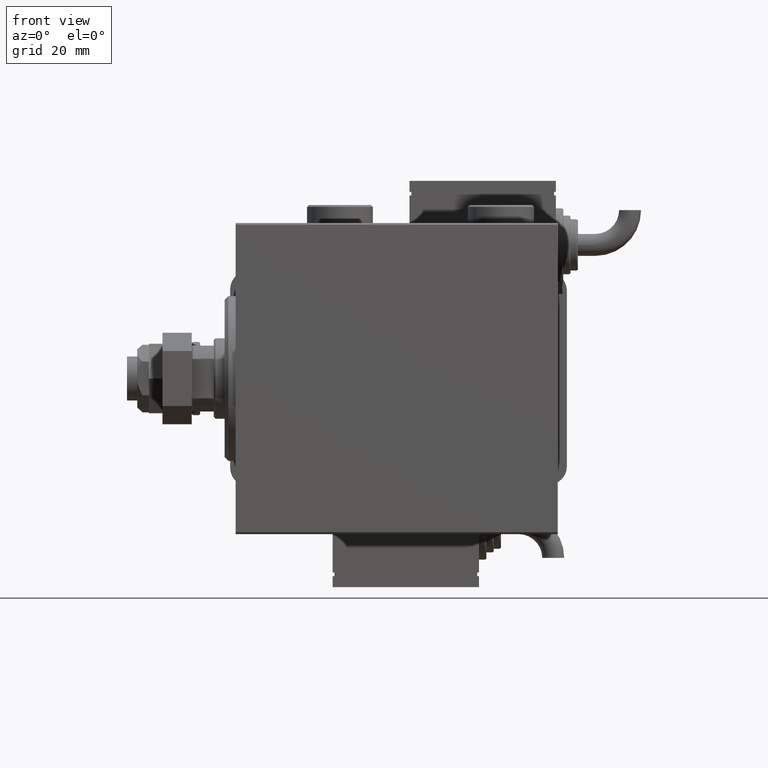
[diagram: clean part render]
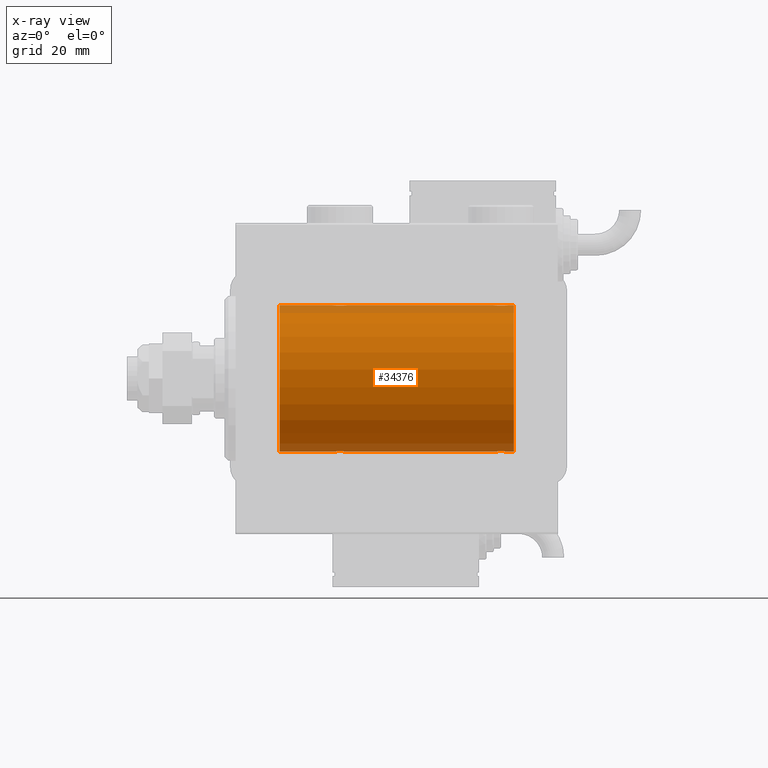
[diagram: x-ray — body ghosted, one internal face saturated and labeled with its STEP entity id]
A machine part, front view, then the same camera in x-ray: the body is ghosted and one INTERNAL B-rep face — a face not visible from any outside direction — is saturated and labeled: STEP entity #34376.
In plain terms, the highlighted cylindrical surface (partial cylindrical patch) has radius 20 mm, axis along (-1, -0, -0).
Its self-contained STEP definition (entity closure, byte-faithful):
#779 = CARTESIAN_POINT ( 'NONE',  ( 27.98351467081095123, -1.936551476643005198, -19.90603968831098314 ) ) ;
#826 = CARTESIAN_POINT ( 'NONE',  ( 26.50000000000000711, -0.2610801504281929919, 20.00000000000000000 ) ) ;
#2074 = CARTESIAN_POINT ( 'NONE',  ( 70.75313023696928383, -1.008108445278686816, -19.97602680192586178 ) ) ;
#2391 = CARTESIAN_POINT ( 'NONE',  ( 71.98351467081099031, -1.936551476643008529, -19.90603968831099024 ) ) ;
#2506 = CARTESIAN_POINT ( 'NONE',  ( 11.99999999999999645, 0.000000000000000000, 0.000000000000000000 ) ) ;
#2880 = EDGE_CURVE ( 'NONE', #22528, #5384, #12019, .T. ) ;
#2999 = CARTESIAN_POINT ( 'NONE',  ( 72.23922743968432769, -1.987205673487811630, -19.90104673894211018 ) ) ;
#3312 = CARTESIAN_POINT ( 'NONE',  ( 72.76358144091415170, -1.986835489085815309, -19.90108393514801577 ) ) ;
#3634 = ORIENTED_EDGE ( 'NONE', *, *, #17148, .F. ) ;
#4553 = CARTESIAN_POINT ( 'NONE',  ( 26.50000000000000355, -3.809869420541414000E-15, -20.00000000000000000 ) ) ;
#4819 = CARTESIAN_POINT ( 'NONE',  ( 71.49693443660397918, -1.735203193119890352, 19.92471783160910803 ) ) ;
#5081 = CIRCLE ( 'NONE', #58569, 20.00000000000000000 ) ;
#5148 = CARTESIAN_POINT ( 'NONE',  ( 29.38829437207091999, -1.796691196322316664, -19.91919800395357143 ) ) ;
#5384 = VERTEX_POINT ( 'NONE', #9202 ) ;
#5442 = CARTESIAN_POINT ( 'NONE',  ( 28.63365196142448355, -1.999898234284062992, -19.89975896996866211 ) ) ;
#5488 = CARTESIAN_POINT ( 'NONE',  ( 28.76077256031567586, -1.987205673487810298, 19.90104673894210663 ) ) ;
#5784 = CARTESIAN_POINT ( 'NONE',  ( 29.71805419472152110, -1.591668229360196252, 19.93669678979812332 ) ) ;
#5971 = VECTOR ( 'NONE', #55344, 1000.000000000000000 ) ;
#6914 = ORIENTED_EDGE ( 'NONE', *, *, #58748, .T. ) ;
#7346 = CARTESIAN_POINT ( 'NONE',  ( 73.50306556339603503, -1.735203193119893461, -19.92471783160911514 ) ) ;
#7553 = LINE ( 'NONE', #59669, #44777 ) ;
#7952 = CARTESIAN_POINT ( 'NONE',  ( 74.50000000000002842, -0.2610801504281906049, -19.99999999999999645 ) ) ;
#8406 = CARTESIAN_POINT ( 'NONE',  ( 76.00000000000000000, 0.000000000000000000, 0.000000000000000000 ) ) ;
#9017 = DIRECTION ( 'NONE',  ( -1.000000000000000000, -0.000000000000000000, -0.000000000000000000 ) ) ;
#9164 = CARTESIAN_POINT ( 'NONE',  ( 70.75174086539982454, -1.005710574260841872, 19.97614991974274190 ) ) ;
#9202 = CARTESIAN_POINT ( 'NONE',  ( 74.50000000000001421, 9.984436361108698300E-16, 20.00000000000000000 ) ) ;
#9468 = CARTESIAN_POINT ( 'NONE',  ( 74.24686976303074459, -1.008108445278681931, 19.97602680192586178 ) ) ;
#9788 = EDGE_CURVE ( 'NONE', #16527, #57274, #61198, .T. ) ;
#9793 = CARTESIAN_POINT ( 'NONE',  ( 26.50000000000001066, -0.2644051013331030209, -20.00000000000000355 ) ) ;
#9832 = CARTESIAN_POINT ( 'NONE',  ( 30.50000000000000000, -4.014971335008767791E-15, 20.00000000000000000 ) ) ;
#10057 = CARTESIAN_POINT ( 'NONE',  ( 70.50000000000000000, -1.553188236289650144E-23, 20.00000000000000000 ) ) ;
#10435 = CARTESIAN_POINT ( 'NONE',  ( 29.50067219139244656, -1.736582545981375292, 19.92459705242981371 ) ) ;
#10549 = LINE ( 'NONE', #58943, #14796 ) ;
#10951 = VECTOR ( 'NONE', #60974, 1000.000000000000000 ) ;
#12019 = B_SPLINE_CURVE_WITH_KNOTS ( 'NONE', 3,
 ( #10057, #42345, #28984, #9164, #38291, #60988, #32731, #4819, #61285, #33040, #23134, #57227, #18468, #37989, #19072, #51650, #37680, #18772, #56626, #14099, #51960, #14707, #9468, #28388, #23741, #42647 ),
 .UNSPECIFIED., .F., .F.,
 ( 4, 2, 2, 2, 2, 2, 2, 2, 2, 2, 2, 2, 4 ),
 ( 0.006256819553329836213, 0.007038738568778784600, 0.007820657584227733855, 0.008211617091952222794, 0.008602576599676711733, 0.008993536107401198937, 0.009384495615125687876, 0.009775455122850176815, 0.01016641463057466402, 0.01055737413829915296, 0.01094833364602364190, 0.01173025266147261630, 0.01251217167692159418 ),
 .UNSPECIFIED. ) ;
#12603 = VERTEX_POINT ( 'NONE', #23732 ) ;
#13657 = CYLINDRICAL_SURFACE ( 'NONE', #53588, 20.00000000000000000 ) ;
#13830 = CARTESIAN_POINT ( 'NONE',  ( 27.49932780860757475, -1.736582545981376180, -19.92459705242981371 ) ) ;
#14099 = CARTESIAN_POINT ( 'NONE',  ( 73.71805419472154597, -1.591668229360190034, 19.93669678979813042 ) ) ;
#14345 = ORIENTED_EDGE ( 'NONE', *, *, #53628, .T. ) ;
#14444 = CARTESIAN_POINT ( 'NONE',  ( 30.44755062882508412, -0.5243189001514996228, -19.99457699142849876 ) ) ;
#14707 = CARTESIAN_POINT ( 'NONE',  ( 74.09774691554730452, -1.230936344679272043, 19.96293863536309487 ) ) ;
#14738 = CARTESIAN_POINT ( 'NONE',  ( 26.55320515808203297, -0.5270924491156698810, -19.99450181871976184 ) ) ;
#14796 = VECTOR ( 'NONE', #54278, 1000.000000000000000 ) ;
#15078 = CARTESIAN_POINT ( 'NONE',  ( 30.09774691554730097, -1.230936344679278482, 19.96293863536309132 ) ) ;
#15685 = CARTESIAN_POINT ( 'NONE',  ( 27.85369326075355545, -1.897222639860597360, 19.90987429971497491 ) ) ;
#15987 = CARTESIAN_POINT ( 'NONE',  ( 28.36634803857552001, -1.999898234284063436, 19.89975896996866211 ) ) ;
#16433 = CARTESIAN_POINT ( 'NONE',  ( 70.50000000000000000, -1.553188236289650144E-23, 20.00000000000000000 ) ) ;
#16527 = VERTEX_POINT ( 'NONE', #41207 ) ;
#16740 = VERTEX_POINT ( 'NONE', #59153 ) ;
#16748 = DIRECTION ( 'NONE',  ( 0.000000000000000000, 0.000000000000000000, 1.000000000000000000 ) ) ;
#16937 = CARTESIAN_POINT ( 'NONE',  ( 71.85651471266959334, -1.898187925611341198, -19.90978194174746818 ) ) ;
#17148 = EDGE_CURVE ( 'NONE', #16740, #32436, #54176, .T. ) ;
#18433 = B_SPLINE_CURVE_WITH_KNOTS ( 'NONE', 3,
 ( #20664, #826, #33711, #29059, #29657, #58207, #39578, #20359, #52942, #15685, #43314, #58511, #15987, #38662, #5488, #48266, #52336, #43614, #10435, #5784, #57596, #15078, #34617, #29357, #20049, #9832 ),
 .UNSPECIFIED., .F., .F.,
 ( 4, 2, 2, 2, 2, 2, 2, 2, 2, 2, 2, 2, 4 ),
 ( 0.006256819553329811059, 0.007038738568778783733, 0.007820657584227756406, 0.008211617091952238406, 0.008602576599676722141, 0.008993536107401204141, 0.009384495615125686141, 0.009775455122850168141, 0.01016641463057465014, 0.01055737413829913214, 0.01094833364602361414, 0.01173025266147257814, 0.01251217167692154214 ),
 .UNSPECIFIED. ) ;
#18434 = VERTEX_POINT ( 'NONE', #22302 ) ;
#18468 = CARTESIAN_POINT ( 'NONE',  ( 72.36634803857555198, -1.999898234284061216, 19.89975896996866922 ) ) ;
#18772 = CARTESIAN_POINT ( 'NONE',  ( 73.38579076670728796, -1.797933656607910713, 19.91908554465557657 ) ) ;
#19072 = CARTESIAN_POINT ( 'NONE',  ( 72.76077256031568652, -1.987205673487806967, 19.90104673894210663 ) ) ;
#19103 = CARTESIAN_POINT ( 'NONE',  ( 30.24825913460018612, -1.005710574260838985, -19.97614991974274190 ) ) ;
#19700 = CARTESIAN_POINT ( 'NONE',  ( 27.17903093152710525, -1.507328959728492457, -19.94333197382385592 ) ) ;
#19756 = EDGE_LOOP ( 'NONE', ( #3634, #6914, #14345, #34634, #40678, #21757, #41931, #26585, #56825, #50252, #37120, #59874 ) ) ;
#20049 = CARTESIAN_POINT ( 'NONE',  ( 30.49999999999999289, -0.2644051013330969702, 20.00000000000000711 ) ) ;
#20073 = DIRECTION ( 'NONE',  ( -1.000000000000000000, -0.000000000000000000, -0.000000000000000000 ) ) ;
#20359 = CARTESIAN_POINT ( 'NONE',  ( 27.49693443660397918, -1.735203193119897902, 19.92471783160911158 ) ) ;
#20664 = CARTESIAN_POINT ( 'NONE',  ( 26.50000000000000355, -1.552596590610734385E-23, 20.00000000000000000 ) ) ;
#20980 = EDGE_CURVE ( 'NONE', #18434, #43789, #30843, .T. ) ;
#20993 = CARTESIAN_POINT ( 'NONE',  ( 70.50000000000000000, -0.2644051013331069067, -19.99999999999999289 ) ) ;
#21311 = CARTESIAN_POINT ( 'NONE',  ( 70.50000000000000000, -5.133775462521235346E-15, -20.00000000000000000 ) ) ;
#21603 = CARTESIAN_POINT ( 'NONE',  ( 70.50000000000000000, -5.133775462521235346E-15, -20.00000000000000000 ) ) ;
#21757 = ORIENTED_EDGE ( 'NONE', *, *, #20980, .T. ) ;
#22302 = CARTESIAN_POINT ( 'NONE',  ( 26.50000000000000355, -3.809869420541414000E-15, -20.00000000000000000 ) ) ;
#22528 = VERTEX_POINT ( 'NONE', #16433 ) ;
#23134 = CARTESIAN_POINT ( 'NONE',  ( 71.98076487864723561, -1.935816449315123977, 19.90611141657402072 ) ) ;
#23426 = VERTEX_POINT ( 'NONE', #48171 ) ;
#23732 = CARTESIAN_POINT ( 'NONE',  ( 74.50000000000001421, 2.449293582762867932E-15, -20.00000000000000000 ) ) ;
#23741 = CARTESIAN_POINT ( 'NONE',  ( 74.50000000000000000, -0.2644051013330985245, 19.99999999999999645 ) ) ;
#23773 = CARTESIAN_POINT ( 'NONE',  ( 28.76358144091416236, -1.986835489085814199, -19.90108393514801222 ) ) ;
#24066 = CARTESIAN_POINT ( 'NONE',  ( 28.36941128289166159, -2.000100592782553921, -19.89973863218036598 ) ) ;
#24658 = CARTESIAN_POINT ( 'NONE',  ( 29.82306668919470383, -1.505486175075772870, -19.94347168299867334 ) ) ;
#25955 = CARTESIAN_POINT ( 'NONE',  ( 70.90225308445273811, -1.230936344679278038, -19.96293863536309487 ) ) ;
#26257 = CARTESIAN_POINT ( 'NONE',  ( 72.63365196142451907, -1.999898234284062104, -19.89975896996866211 ) ) ;
#26585 = ORIENTED_EDGE ( 'NONE', *, *, #9788, .F. ) ;
#26865 = CARTESIAN_POINT ( 'NONE',  ( 71.61420923329269783, -1.797933656607920039, -19.91908554465557657 ) ) ;
#27442 = AXIS2_PLACEMENT_3D ( 'NONE', #44108, #43493, #39758 ) ;
#28380 = B_SPLINE_CURVE_WITH_KNOTS ( 'NONE', 3,
 ( #33672, #37418, #14444, #19103, #52597, #24658, #43272, #33374, #5148, #56969, #37714, #23773, #5442, #24066, #52295, #779, #38024, #51684, #13830, #47026, #19700, #47328, #47627, #14738, #9793, #4553 ),
 .UNSPECIFIED., .F., .F.,
 ( 4, 2, 2, 2, 2, 2, 2, 2, 2, 2, 2, 2, 4 ),
 ( 0.006256819553329842284, 0.007038738568778818427, 0.007820657584227792836, 0.008211617091952278305, 0.008602576599676762040, 0.008993536107401245774, 0.009384495615125729509, 0.009775455122850213244, 0.01016641463057469871, 0.01055737413829918071, 0.01094833364602366618, 0.01173025266147263365, 0.01251217167692159939 ),
 .UNSPECIFIED. ) ;
#28388 = CARTESIAN_POINT ( 'NONE',  ( 74.44679484191796348, -0.5270924491156651071, 19.99450181871975829 ) ) ;
#28984 = CARTESIAN_POINT ( 'NONE',  ( 70.55244937117491588, -0.5243189001515019543, 19.99457699142849876 ) ) ;
#29059 = CARTESIAN_POINT ( 'NONE',  ( 26.75174086539981033, -1.005710574260841206, 19.97614991974274190 ) ) ;
#29083 = LINE ( 'NONE', #47994, #47665 ) ;
#29357 = CARTESIAN_POINT ( 'NONE',  ( 30.44679484191797414, -0.5270924491156706582, 19.99450181871975829 ) ) ;
#29657 = CARTESIAN_POINT ( 'NONE',  ( 26.90058475115969827, -1.228758402364236391, 19.96307487248084556 ) ) ;
#30084 = CARTESIAN_POINT ( 'NONE',  ( 11.99999999999999645, 2.449293598294706513E-15, -20.00000000000000000 ) ) ;
#30564 = CARTESIAN_POINT ( 'NONE',  ( 76.00000000000000000, 0.000000000000000000, 20.00000000000000000 ) ) ;
#30616 = CARTESIAN_POINT ( 'NONE',  ( 74.24825913460018967, -1.005710574260840984, -19.97614991974274901 ) ) ;
#30843 = LINE ( 'NONE', #41059, #5971 ) ;
#31220 = CARTESIAN_POINT ( 'NONE',  ( 74.09941524884031594, -1.228758402364235947, -19.96307487248084556 ) ) ;
#31652 = EDGE_CURVE ( 'NONE', #32436, #5384, #10549, .T. ) ;
#32436 = VERTEX_POINT ( 'NONE', #30564 ) ;
#32731 = CARTESIAN_POINT ( 'NONE',  ( 71.27971054205536916, -1.589957321664204448, 19.93683391378736403 ) ) ;
#32790 = B_SPLINE_CURVE_WITH_KNOTS ( 'NONE', 3,
 ( #58849, #7952, #45184, #30616, #31220, #49831, #60085, #7346, #50753, #40511, #44564, #3312, #26257, #44871, #2999, #2391, #16937, #26865, #35254, #54798, #36170, #25955, #2074, #45486, #20993, #21311 ),
 .UNSPECIFIED., .F., .F.,
 ( 4, 2, 2, 2, 2, 2, 2, 2, 2, 2, 2, 2, 4 ),
 ( 0.006256819553329831876, 0.007038738568778780264, 0.007820657584227728651, 0.008211617091952217590, 0.008602576599676706529, 0.008993536107401195467, 0.009384495615125684406, 0.009775455122850173345, 0.01016641463057466055, 0.01055737413829914775, 0.01094833364602363843, 0.01173025266147261284, 0.01251217167692158898 ),
 .UNSPECIFIED. ) ;
#33040 = CARTESIAN_POINT ( 'NONE',  ( 71.85369326075358742, -1.897222639860597360, 19.90987429971497491 ) ) ;
#33374 = CARTESIAN_POINT ( 'NONE',  ( 29.50306556339602437, -1.735203193119894349, -19.92471783160910803 ) ) ;
#33672 = CARTESIAN_POINT ( 'NONE',  ( 30.50000000000000000, 2.449293582768389958E-15, -20.00000000000000000 ) ) ;
#33711 = CARTESIAN_POINT ( 'NONE',  ( 26.55244937117492299, -0.5243189001515023984, 19.99457699142850586 ) ) ;
#34376 = ADVANCED_FACE ( 'NONE', ( #46237 ), #13657, .F. ) ;
#34617 = CARTESIAN_POINT ( 'NONE',  ( 30.24686976303072328, -1.008108445278687926, 19.97602680192586888 ) ) ;
#34634 = ORIENTED_EDGE ( 'NONE', *, *, #52572, .T. ) ;
#35254 = CARTESIAN_POINT ( 'NONE',  ( 71.49932780860757475, -1.736582545981372405, -19.92459705242980661 ) ) ;
#36170 = CARTESIAN_POINT ( 'NONE',  ( 71.17903093152709459, -1.507328959728491791, -19.94333197382385592 ) ) ;
#36240 = VECTOR ( 'NONE', #39352, 1000.000000000000000 ) ;
#37120 = ORIENTED_EDGE ( 'NONE', *, *, #2880, .T. ) ;
#37418 = CARTESIAN_POINT ( 'NONE',  ( 30.49999999999999645, -0.2610801504281900498, -19.99999999999999645 ) ) ;
#37680 = CARTESIAN_POINT ( 'NONE',  ( 73.14348528733046351, -1.898187925611334315, 19.90978194174746818 ) ) ;
#37714 = CARTESIAN_POINT ( 'NONE',  ( 29.01923512135276795, -1.935816449315124643, -19.90611141657401717 ) ) ;
#37989 = CARTESIAN_POINT ( 'NONE',  ( 72.63058871710832420, -2.000100592782551256, 19.89973863218035888 ) ) ;
#38024 = CARTESIAN_POINT ( 'NONE',  ( 27.85651471266959334, -1.898187925611338533, -19.90978194174746818 ) ) ;
#38291 = CARTESIAN_POINT ( 'NONE',  ( 70.90058475115969827, -1.228758402364240609, 19.96307487248084911 ) ) ;
#38662 = CARTESIAN_POINT ( 'NONE',  ( 28.63058871710834552, -2.000100592782553921, 19.89973863218035888 ) ) ;
#39352 = DIRECTION ( 'NONE',  ( -1.000000000000000000, -0.000000000000000000, -0.000000000000000000 ) ) ;
#39578 = CARTESIAN_POINT ( 'NONE',  ( 27.27971054205535850, -1.589957321664211998, 19.93683391378736047 ) ) ;
#39758 = DIRECTION ( 'NONE',  ( 0.000000000000000000, 0.000000000000000000, 1.000000000000000000 ) ) ;
#40511 = CARTESIAN_POINT ( 'NONE',  ( 73.14630673924648363, -1.897222639860595139, -19.90987429971497136 ) ) ;
#40678 = ORIENTED_EDGE ( 'NONE', *, *, #44155, .T. ) ;
#41059 = CARTESIAN_POINT ( 'NONE',  ( 76.00000000000000000, 2.449293598294706513E-15, -20.00000000000000000 ) ) ;
#41207 = CARTESIAN_POINT ( 'NONE',  ( 26.50000000000000355, -1.552596590610734385E-23, 20.00000000000000000 ) ) ;
#41405 = LINE ( 'NONE', #60664, #10951 ) ;
#41931 = ORIENTED_EDGE ( 'NONE', *, *, #56930, .T. ) ;
#42345 = CARTESIAN_POINT ( 'NONE',  ( 70.50000000000004263, -0.2610801504281927699, 20.00000000000000355 ) ) ;
#42647 = CARTESIAN_POINT ( 'NONE',  ( 74.50000000000001421, 9.984436361108698300E-16, 20.00000000000000000 ) ) ;
#43272 = CARTESIAN_POINT ( 'NONE',  ( 29.72028945794465571, -1.589957321664208223, -19.93683391378736047 ) ) ;
#43314 = CARTESIAN_POINT ( 'NONE',  ( 27.98076487864722495, -1.935816449315125087, 19.90611141657401362 ) ) ;
#43493 = DIRECTION ( 'NONE',  ( -1.000000000000000000, 0.000000000000000000, 0.000000000000000000 ) ) ;
#43614 = CARTESIAN_POINT ( 'NONE',  ( 29.38579076670729151, -1.797933656607919817, 19.91908554465558367 ) ) ;
#43789 = VERTEX_POINT ( 'NONE', #30084 ) ;
#44108 = CARTESIAN_POINT ( 'NONE',  ( 76.00000000000000000, 0.000000000000000000, 0.000000000000000000 ) ) ;
#44155 = EDGE_CURVE ( 'NONE', #23426, #18434, #28380, .T. ) ;
#44564 = CARTESIAN_POINT ( 'NONE',  ( 73.01923512135279282, -1.935816449315126642, -19.90611141657402072 ) ) ;
#44777 = VECTOR ( 'NONE', #59364, 1000.000000000000000 ) ;
#44871 = CARTESIAN_POINT ( 'NONE',  ( 72.36941128289164737, -2.000100592782554809, -19.89973863218035888 ) ) ;
#45184 = CARTESIAN_POINT ( 'NONE',  ( 74.44755062882509833, -0.5243189001515005110, -19.99457699142850231 ) ) ;
#45486 = CARTESIAN_POINT ( 'NONE',  ( 70.55320515808200810, -0.5270924491156711023, -19.99450181871975474 ) ) ;
#46237 = FACE_OUTER_BOUND ( 'NONE', #19756, .T. ) ;
#47026 = CARTESIAN_POINT ( 'NONE',  ( 27.28194580527848601, -1.591668229360197140, -19.93669678979812332 ) ) ;
#47328 = CARTESIAN_POINT ( 'NONE',  ( 26.90225308445269903, -1.230936344679278260, -19.96293863536309132 ) ) ;
#47627 = CARTESIAN_POINT ( 'NONE',  ( 26.75313023696928738, -1.008108445278687704, -19.97602680192586533 ) ) ;
#47665 = VECTOR ( 'NONE', #20073, 1000.000000000000000 ) ;
#47994 = CARTESIAN_POINT ( 'NONE',  ( 76.00000000000000000, 0.000000000000000000, 20.00000000000000000 ) ) ;
#48171 = CARTESIAN_POINT ( 'NONE',  ( 30.50000000000000000, 2.449293582768389958E-15, -20.00000000000000000 ) ) ;
#48266 = CARTESIAN_POINT ( 'NONE',  ( 29.01648532918905943, -1.936551476643006753, 19.90603968831098669 ) ) ;
#49831 = CARTESIAN_POINT ( 'NONE',  ( 73.82306668919467540, -1.505486175075773758, -19.94347168299867690 ) ) ;
#50252 = ORIENTED_EDGE ( 'NONE', *, *, #53604, .F. ) ;
#50753 = CARTESIAN_POINT ( 'NONE',  ( 73.38829437207093065, -1.796691196322316886, -19.91919800395357143 ) ) ;
#51650 = CARTESIAN_POINT ( 'NONE',  ( 73.01648532918906653, -1.936551476643001202, 19.90603968831098669 ) ) ;
#51684 = CARTESIAN_POINT ( 'NONE',  ( 27.61420923329272981, -1.797933656607917596, -19.91908554465558367 ) ) ;
#51960 = CARTESIAN_POINT ( 'NONE',  ( 73.82096906847290541, -1.507328959728488238, 19.94333197382385947 ) ) ;
#52295 = CARTESIAN_POINT ( 'NONE',  ( 28.23922743968432059, -1.987205673487808966, -19.90104673894211018 ) ) ;
#52336 = CARTESIAN_POINT ( 'NONE',  ( 29.14348528733041377, -1.898187925611340088, 19.90978194174746818 ) ) ;
#52572 = EDGE_CURVE ( 'NONE', #60229, #23426, #41405, .T. ) ;
#52597 = CARTESIAN_POINT ( 'NONE',  ( 30.09941524884030173, -1.228758402364235502, -19.96307487248084911 ) ) ;
#52942 = CARTESIAN_POINT ( 'NONE',  ( 27.61170562792909422, -1.796691196322319994, 19.91919800395357143 ) ) ;
#53588 = AXIS2_PLACEMENT_3D ( 'NONE', #8406, #9017, #60529 ) ;
#53604 = EDGE_CURVE ( 'NONE', #22528, #61182, #29083, .T. ) ;
#53628 = EDGE_CURVE ( 'NONE', #12603, #60229, #32790, .T. ) ;
#54176 = CIRCLE ( 'NONE', #27442, 20.00000000000000000 ) ;
#54258 = CARTESIAN_POINT ( 'NONE',  ( 30.50000000000000000, -4.014971335008767791E-15, 20.00000000000000000 ) ) ;
#54278 = DIRECTION ( 'NONE',  ( -1.000000000000000000, -0.000000000000000000, -0.000000000000000000 ) ) ;
#54798 = CARTESIAN_POINT ( 'NONE',  ( 71.28194580527849666, -1.591668229360193143, -19.93669678979812332 ) ) ;
#54851 = CARTESIAN_POINT ( 'NONE',  ( 76.00000000000000000, 0.000000000000000000, 20.00000000000000000 ) ) ;
#55344 = DIRECTION ( 'NONE',  ( -1.000000000000000000, -0.000000000000000000, -0.000000000000000000 ) ) ;
#56626 = CARTESIAN_POINT ( 'NONE',  ( 73.50067219139243946, -1.736582545981368852, 19.92459705242980661 ) ) ;
#56825 = ORIENTED_EDGE ( 'NONE', *, *, #59178, .T. ) ;
#56930 = EDGE_CURVE ( 'NONE', #43789, #57274, #5081, .T. ) ;
#56969 = CARTESIAN_POINT ( 'NONE',  ( 29.14630673924643744, -1.897222639860594029, -19.90987429971496780 ) ) ;
#57078 = CARTESIAN_POINT ( 'NONE',  ( 11.99999999999999645, 0.000000000000000000, 20.00000000000000000 ) ) ;
#57227 = CARTESIAN_POINT ( 'NONE',  ( 72.23641855908587672, -1.986835489085812867, 19.90108393514801577 ) ) ;
#57274 = VERTEX_POINT ( 'NONE', #57078 ) ;
#57596 = CARTESIAN_POINT ( 'NONE',  ( 29.82096906847289119, -1.507328959728493567, 19.94333197382385592 ) ) ;
#58207 = CARTESIAN_POINT ( 'NONE',  ( 27.17693331080528907, -1.505486175075773758, 19.94347168299867690 ) ) ;
#58511 = CARTESIAN_POINT ( 'NONE',  ( 28.23641855908585541, -1.986835489085814643, 19.90108393514801222 ) ) ;
#58569 = AXIS2_PLACEMENT_3D ( 'NONE', #2506, #58657, #16748 ) ;
#58657 = DIRECTION ( 'NONE',  ( -1.000000000000000000, 0.000000000000000000, 0.000000000000000000 ) ) ;
#58748 = EDGE_CURVE ( 'NONE', #16740, #12603, #7553, .T. ) ;
#58849 = CARTESIAN_POINT ( 'NONE',  ( 74.50000000000001421, 2.449293582762867932E-15, -20.00000000000000000 ) ) ;
#58943 = CARTESIAN_POINT ( 'NONE',  ( 76.00000000000000000, 0.000000000000000000, 20.00000000000000000 ) ) ;
#59153 = CARTESIAN_POINT ( 'NONE',  ( 76.00000000000000000, 2.449293598294706513E-15, -20.00000000000000000 ) ) ;
#59178 = EDGE_CURVE ( 'NONE', #16527, #61182, #18433, .T. ) ;
#59364 = DIRECTION ( 'NONE',  ( -1.000000000000000000, -0.000000000000000000, -0.000000000000000000 ) ) ;
#59669 = CARTESIAN_POINT ( 'NONE',  ( 76.00000000000000000, 2.449293598294706513E-15, -20.00000000000000000 ) ) ;
#59874 = ORIENTED_EDGE ( 'NONE', *, *, #31652, .F. ) ;
#60085 = CARTESIAN_POINT ( 'NONE',  ( 73.72028945794465926, -1.589957321664207113, -19.93683391378736758 ) ) ;
#60229 = VERTEX_POINT ( 'NONE', #21603 ) ;
#60529 = DIRECTION ( 'NONE',  ( 0.000000000000000000, 0.000000000000000000, 1.000000000000000000 ) ) ;
#60664 = CARTESIAN_POINT ( 'NONE',  ( 76.00000000000000000, 2.449293598294706513E-15, -20.00000000000000000 ) ) ;
#60974 = DIRECTION ( 'NONE',  ( -1.000000000000000000, -0.000000000000000000, -0.000000000000000000 ) ) ;
#60988 = CARTESIAN_POINT ( 'NONE',  ( 71.17693331080536723, -1.505486175075777311, 19.94347168299868045 ) ) ;
#61182 = VERTEX_POINT ( 'NONE', #54258 ) ;
#61198 = LINE ( 'NONE', #54851, #36240 ) ;
#61285 = CARTESIAN_POINT ( 'NONE',  ( 71.61170562792908356, -1.796691196322320216, 19.91919800395356788 ) ) ;